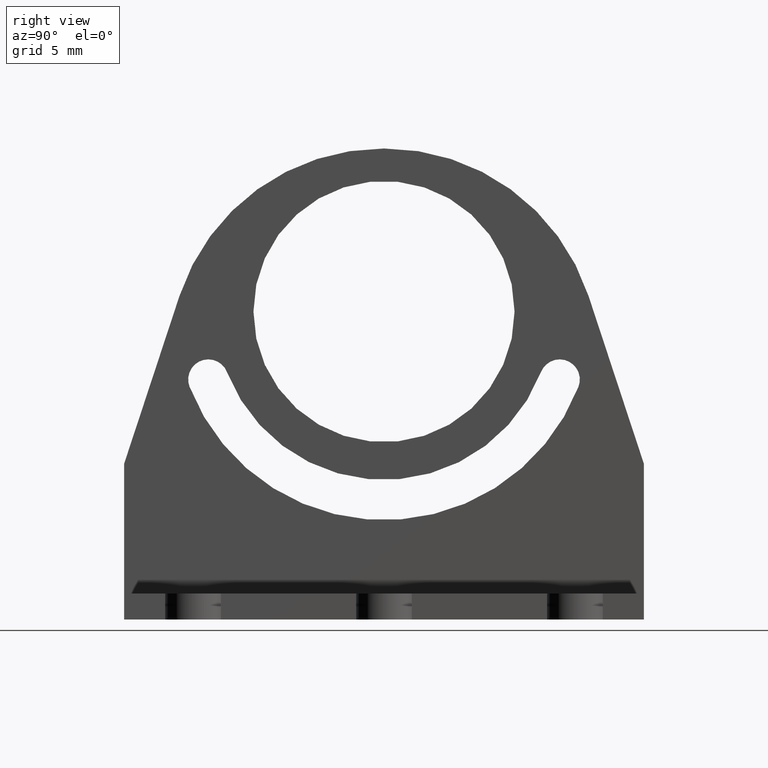
[diagram: clean part render]
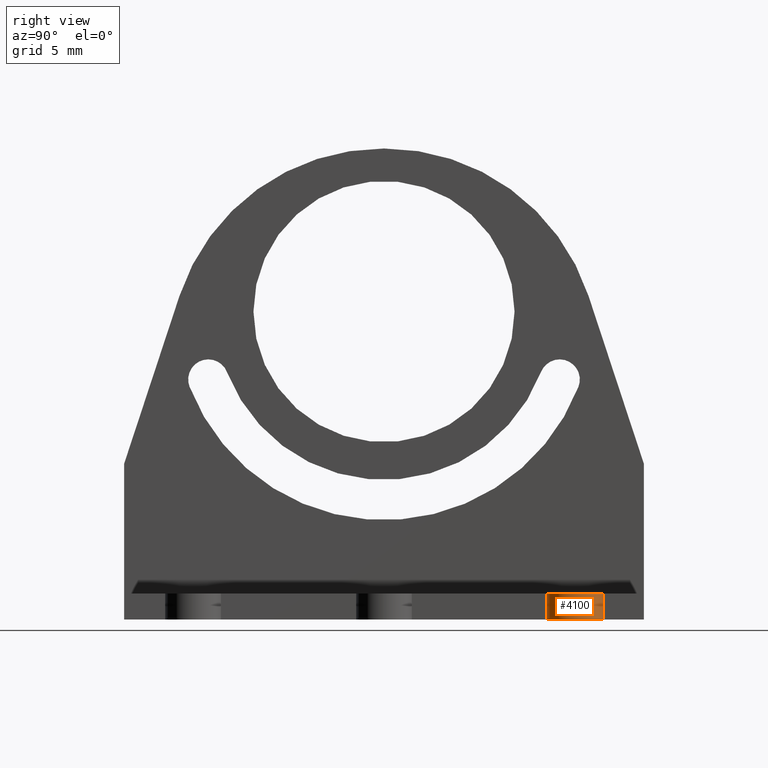
[diagram: same view with one face highlighted and labeled with its STEP entity id]
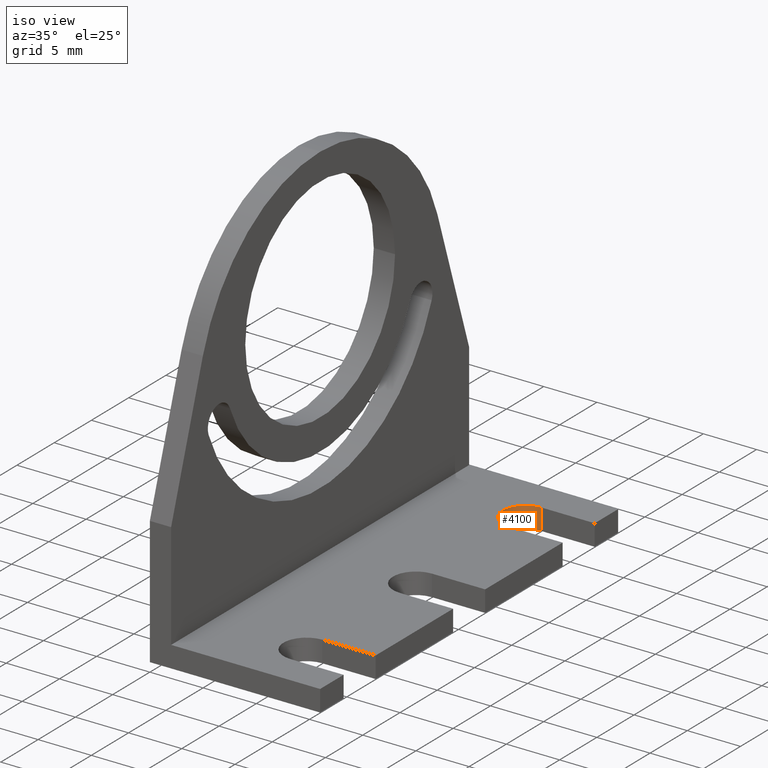
[diagram: same view with one face highlighted and labeled with its STEP entity id]
A machine part, right view. The second image highlights one B-rep face of the part: STEP entity #4100.
A second angle (iso view) of the same face is appended — the face is thin or edge-on in the first view.
In plain terms, the highlighted cylindrical surface (edge-blend (fillet) strip) has radius 2.15 mm, axis along (0, 0, 1).
Its self-contained STEP definition (entity closure, byte-faithful):
#670=CARTESIAN_POINT('',(16.85,-1.16933047624056E-15,11.));
#680=VERTEX_POINT('',#670);
#710=CARTESIAN_POINT('',(14.7,-1.66533453693773E-15,11.));
#720=DIRECTION('',(-3.42381711077589E-32,-1.,-1.31089490766937E-16));
#730=DIRECTION('',(-1.,1.00900813458502E-30,-7.43591235097779E-15));
#740=AXIS2_PLACEMENT_3D('',#710,#720,#730);
#750=CIRCLE('',#740,2.15);
#760=CARTESIAN_POINT('',(12.55,-1.22124532708767E-15,11.));
#770=VERTEX_POINT('',#760);
#780=EDGE_CURVE('',#770,#680,#750,.T.);
#3090=CARTESIAN_POINT('',(12.55,-2.,11.));
#3100=VERTEX_POINT('',#3090);
#3130=CARTESIAN_POINT('',(14.7,-2.,11.));
#3140=DIRECTION('',(-1.94953992695451E-30,1.,1.31089490766937E-16));
#3150=DIRECTION('',(1.,0.,1.48718247019556E-14));
#3160=AXIS2_PLACEMENT_3D('',#3130,#3140,#3150);
#3170=CIRCLE('',#3160,2.15);
#3180=CARTESIAN_POINT('',(16.85,-2.,11.));
#3190=VERTEX_POINT('',#3180);
#3200=EDGE_CURVE('',#3190,#3100,#3170,.T.);
#3760=CARTESIAN_POINT('',(12.55,-1.66533453693773E-15,11.));
#3770=DIRECTION('',(0.,-1.,0.));
#3780=VECTOR('',#3770,1.);
#3790=LINE('',#3760,#3780);
#3800=EDGE_CURVE('',#770,#3100,#3790,.T.);
#3940=CARTESIAN_POINT('',(14.7,-1.,11.));
#3950=DIRECTION('',(1.70553012815438E-32,1.,1.31089490766937E-16));
#3960=DIRECTION('',(-5.15641020167794E-49,-1.31089490766937E-16,1.));
#3970=AXIS2_PLACEMENT_3D('',#3940,#3950,#3960);
#3980=CYLINDRICAL_SURFACE('',#3970,2.15);
#3990=ORIENTED_EDGE('',*,*,#3200,.F.);
#4000=ORIENTED_EDGE('',*,*,#3800,.T.);
#4010=ORIENTED_EDGE('',*,*,#780,.F.);
#4020=CARTESIAN_POINT('',(16.85,-2.,11.));
#4030=DIRECTION('',(0.,1.,0.));
#4040=VECTOR('',#4030,1.);
#4050=LINE('',#4020,#4040);
#4060=EDGE_CURVE('',#3190,#680,#4050,.T.);
#4070=ORIENTED_EDGE('',*,*,#4060,.T.);
#4080=EDGE_LOOP('',(#4070,#4010,#4000,#3990));
#4090=FACE_OUTER_BOUND('',#4080,.T.);
#4100=ADVANCED_FACE('',(#4090),#3980,.F.);